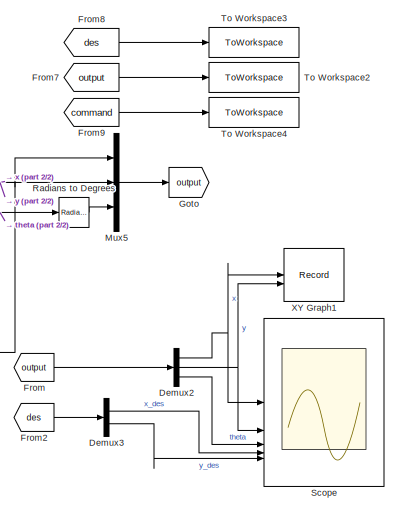
[diagram: root canvas - part 1/2, right side, full height]
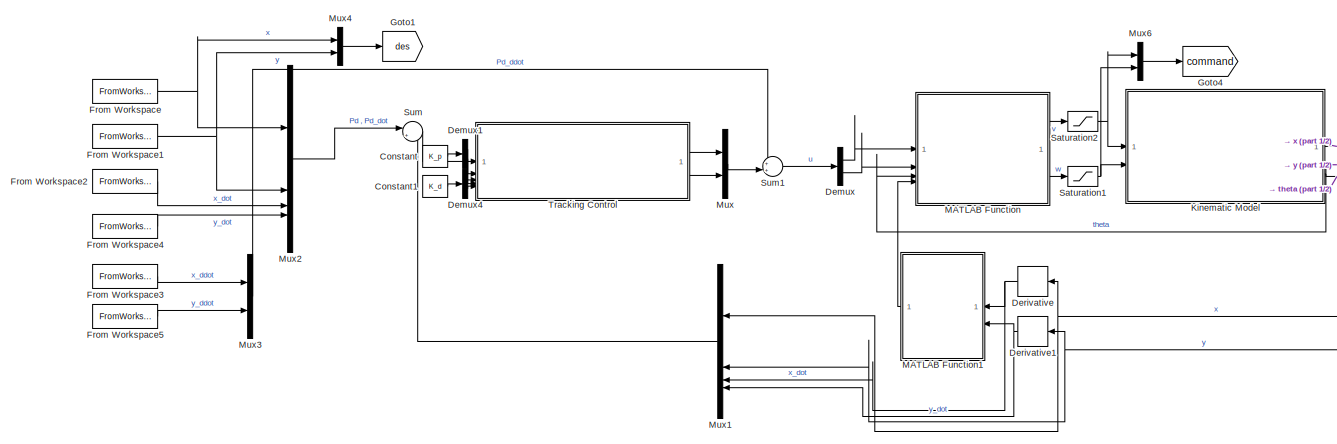
[diagram: root canvas - part 2/2, most of the canvas]
MODEL slx_bae11cb92dfe
KIND model
CONFIG AbsTol = auto
CONFIG EnableMultiTasking = off
CONFIG FixedStep = step_size
CONFIG MaxStep = auto
CONFIG MinStep = auto
CONFIG RelTol = 1e-3
CONFIG SampleTimeConstraint = Unconstrained
CONFIG SolverName = FixedStepAuto
CONFIG StartTime = 0.0
CONFIG StopTime = 10.0
BLOCK [Constant] Constant
  Value = K_p
BLOCK [Constant] Constant1
  Value = K_d
BLOCK [Demux] Demux
  Outputs = 2
BLOCK [Demux] Demux1
  Outputs = 2
BLOCK [Demux] Demux2
  Outputs = 3
BLOCK [Demux] Demux3
  Outputs = 2
BLOCK [Demux] Demux4
  Outputs = 2
BLOCK [Derivative] Derivative
  NameLocation = top
BLOCK [Derivative] Derivative1
  NameLocation = top
BLOCK [From] From
  GotoTag = output
BLOCK [FromWorkspace] From Workspace
  VariableName = x_sim
BLOCK [FromWorkspace] From Workspace1
  VariableName = y_sim
BLOCK [FromWorkspace] From Workspace2
  VariableName = x_dot_sim
BLOCK [FromWorkspace] From Workspace3
  VariableName = x_dot_dot_sim
BLOCK [FromWorkspace] From Workspace4
  VariableName = y_dot_sim
BLOCK [FromWorkspace] From Workspace5
  VariableName = y_dot_dot_sim
BLOCK [From] From2
  GotoTag = des
BLOCK [From] From7
  GotoTag = output
BLOCK [From] From8
  GotoTag = des
BLOCK [From] From9
  GotoTag = command
BLOCK [Goto] Goto
  GotoTag = output
BLOCK [Goto] Goto1
  GotoTag = des
BLOCK [Goto] Goto4
  GotoTag = command
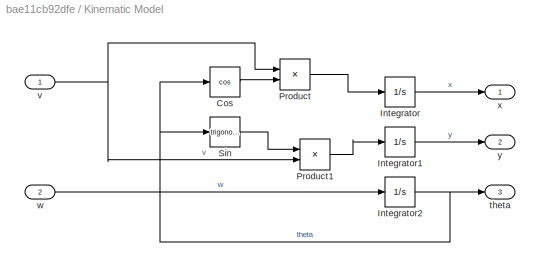
BLOCK [SubSystem] Kinematic Model
BLOCK [Trigonometry] Kinematic Model/Cos
  Operator = cos
BLOCK [Integrator] Kinematic Model/Integrator
  InitialCondition = x_i
BLOCK [Integrator] Kinematic Model/Integrator1
  InitialCondition = y_i
BLOCK [Integrator] Kinematic Model/Integrator2
  InitialCondition = theta_i
BLOCK [Product] Kinematic Model/Product
BLOCK [Product] Kinematic Model/Product1
BLOCK [Trigonometry] Kinematic Model/Sin
BLOCK [Outport] Kinematic Model/theta
  Port = 3
BLOCK [Inport] Kinematic Model/v
BLOCK [Inport] Kinematic Model/w
  Port = 2
BLOCK [Outport] Kinematic Model/x
BLOCK [Outport] Kinematic Model/y
  Port = 2
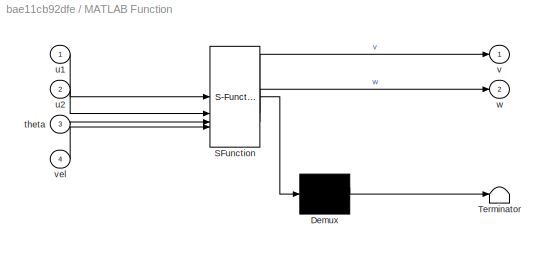
BLOCK [SubSystem] MATLAB Function
  ErrorFcn = Stateflow.Translate.translate
  PermitHierarchicalResolution = ExplicitOnly
  SFBlockType = MATLAB Function
  TreatAsAtomicUnit = on
BLOCK [Demux] MATLAB Function/ Demux 
  Outputs = 1
BLOCK [S-Function] MATLAB Function/ SFunction 
  EnableBusSupport = on
  FunctionName = sf_sfun
  PortCounts = [4 3]
  SFcnIsStateOwnerBlock = off
  SFunctionDeploymentMode = off
  Tag = Stateflow S-Function 1
BLOCK [Terminator] MATLAB Function/ Terminator 
BLOCK [Inport] MATLAB Function/theta
  Port = 3
BLOCK [Inport] MATLAB Function/u1
BLOCK [Inport] MATLAB Function/u2
  Port = 2
BLOCK [Outport] MATLAB Function/v
BLOCK [Inport] MATLAB Function/vel
  Port = 4
BLOCK [Outport] MATLAB Function/w
  Port = 2
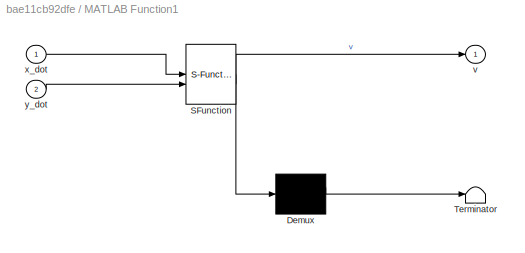
BLOCK [SubSystem] MATLAB Function1
  ErrorFcn = Stateflow.Translate.translate
  NameLocation = top
  PermitHierarchicalResolution = ExplicitOnly
  SFBlockType = MATLAB Function
  TreatAsAtomicUnit = on
BLOCK [Demux] MATLAB Function1/ Demux 
  Outputs = 1
BLOCK [S-Function] MATLAB Function1/ SFunction 
  EnableBusSupport = on
  FunctionName = sf_sfun
  PortCounts = [2 2]
  SFcnIsStateOwnerBlock = off
  SFunctionDeploymentMode = off
  Tag = Stateflow S-Function 3
BLOCK [Terminator] MATLAB Function1/ Terminator 
BLOCK [Outport] MATLAB Function1/v
BLOCK [Inport] MATLAB Function1/x_dot
BLOCK [Inport] MATLAB Function1/y_dot
  Port = 2
BLOCK [Mux] Mux
  DisplayOption = bar
  Inputs = 2
BLOCK [Mux] Mux1
  DisplayOption = bar
  NameLocation = top
BLOCK [Mux] Mux2
  DisplayOption = bar
BLOCK [Mux] Mux3
  DisplayOption = bar
  Inputs = 2
BLOCK [Mux] Mux4
  DisplayOption = bar
  Inputs = 2
BLOCK [Mux] Mux5
  DisplayOption = bar
  Inputs = 3
BLOCK [Mux] Mux6
  DisplayOption = bar
  Inputs = 2
BLOCK [Reference] Radians to Degrees  REF=simulink_extras/Transformations/Radians
to Degrees
  SourceBlock = simulink_extras/Transformations/Radians\nto Degrees
  SourceType = RadiansToDegrees
BLOCK [Saturate] Saturation1
  LowerLimit = -2
  UpperLimit = 2
BLOCK [Saturate] Saturation2
  LowerLimit = -2
  UpperLimit = 2
BLOCK [Scope] Scope
  Floating = off
  NumInputPorts = 5
  ScopeSpecificationString = Simulink.scopes.TimeScopeBlockCfg('CurrentConfiguration', extmgr.ConfigurationSet(extmgr.Configuration('Core','General UI',true),extmgr.Configuration('Core','Source UI',true),extmgr.Configuration('Sources','WiredSimulink',true),extmgr.Configuration('Visuals','Time Domain',true,'SerializedDisplays',{struct('MinYLimReal','-3.3286','MaxYLimReal','6.35392','YLabelReal','','MinYLimMag','0.00000','MaxYL...<+4733ch>
BLOCK [Sum] Sum
  Inputs = |+-
BLOCK [Sum] Sum1
  Inputs = ++|
BLOCK [ToWorkspace] To Workspace2
  FixptAsFi = on
  MaxDataPoints = inf
  SampleTime = -1
  SaveFormat = Structure With Time
  VariableName = output
BLOCK [ToWorkspace] To Workspace3
  FixptAsFi = on
  MaxDataPoints = inf
  SampleTime = -1
  SaveFormat = Structure With Time
  VariableName = reference
BLOCK [ToWorkspace] To Workspace4
  FixptAsFi = on
  MaxDataPoints = inf
  SampleTime = -1
  SaveFormat = Structure With Time
  VariableName = command
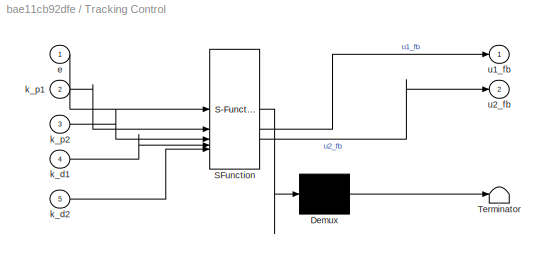
BLOCK [SubSystem] Tracking Control
  ErrorFcn = Stateflow.Translate.translate
  PermitHierarchicalResolution = ExplicitOnly
  SFBlockType = MATLAB Function
  TreatAsAtomicUnit = on
BLOCK [Demux] Tracking Control/ Demux 
  Outputs = 1
BLOCK [S-Function] Tracking Control/ SFunction 
  EnableBusSupport = on
  FunctionName = sf_sfun
  PortCounts = [5 3]
  SFcnIsStateOwnerBlock = off
  SFunctionDeploymentMode = off
  Tag = Stateflow S-Function 2
BLOCK [Terminator] Tracking Control/ Terminator 
BLOCK [Inport] Tracking Control/e
BLOCK [Inport] Tracking Control/k_d1
  Port = 4
BLOCK [Inport] Tracking Control/k_d2
  Port = 5
BLOCK [Inport] Tracking Control/k_p1
  Port = 2
BLOCK [Inport] Tracking Control/k_p2
  Port = 3
BLOCK [Outport] Tracking Control/u1_fb
BLOCK [Outport] Tracking Control/u2_fb
  Port = 2
BLOCK [Record] XY Graph1
  CompatibilityTag = XY
  FileSettingsInternal = {"entries":[{"content":{"excelSettings":{"content":{},"type":"Streamout.ExcelSettings"}},"type":"Streamout.FileSettingStorage","uuid":"a8dc78ea-e018-43ee-9ce6-9f039c81d0b7"}],"packageUris":["http://schema.mathworks.com/mf0/streamout_blocks/R2020a"],"version":"1.0"}
  Layout = [1 1]
  SignalsInternal = {"entries":[{"content":{"signals":[{"content":{"blockPath":["Z_Feedback_MATLAB/XY Graph1"],"channel":[],"dimensions":[1],"domain":"Z_Feedback_MATLAB/XY Graph1","lineColor":"#a2142f","plots":[1],"port":1,"sid":[""],"signalID":915,"signalName":"x"},"type":"RecordBlkView.Signal","uuid":"f428528e-22f6-48e8-82b2-ec440df36d04"},{"content":{"blockPath":["Z_Feedback_MATLAB/XY Graph1"],"channel":[],"dimens...<+389ch>
  VisualizationBindings = {"xyplotplugin":{"info":[{"series":[{"bindingParametersList":[{"parameter":"X-Axis","signalID":915,"signalName":"x"},{"parameter":"Y-Axis","signalID":919,"signalName":"y"}],"seriesID":40585}],"subplotID":1}]}}
LINE Constant1:1 -> Demux4:1
LINE Constant:1 -> Demux1:1
LINE Demux1:1 -> Tracking Control:2
LINE Demux1:2 -> Tracking Control:3
NET Demux2:1 -> Scope:1, XY Graph1:1
NET Demux2:2 -> Scope:2, XY Graph1:2
LINE Demux2:3 -> Scope:3
LINE Demux3:1 -> Scope:4
LINE Demux3:2 -> Scope:5
LINE Demux4:1 -> Tracking Control:4
LINE Demux4:2 -> Tracking Control:5
LINE Demux:1 -> MATLAB Function:1
LINE Demux:2 -> MATLAB Function:2
NET Derivative1:1 -> MATLAB Function1:2, Mux1:4
NET Derivative:1 -> MATLAB Function1:1, Mux1:3
NET From Workspace1:1 -> Mux2:2, Mux4:2
LINE From Workspace2:1 -> Mux2:3
LINE From Workspace3:1 -> Mux3:1
LINE From Workspace4:1 -> Mux2:4
LINE From Workspace5:1 -> Mux3:2
NET From Workspace:1 -> Mux2:1, Mux4:1
LINE From2:1 -> Demux3:1
LINE From7:1 -> To Workspace2:1
LINE From8:1 -> To Workspace3:1
LINE From9:1 -> To Workspace4:1
LINE From:1 -> Demux2:1
LINE Kinematic Model/Cos:1 -> Kinematic Model/Product:2
LINE Kinematic Model/Integrator1:1 -> Kinematic Model/y:1
NET Kinematic Model/Integrator2:1 -> Kinematic Model/Cos:1, Kinematic Model/Sin:1, Kinematic Model/theta:1
LINE Kinematic Model/Integrator:1 -> Kinematic Model/x:1
LINE Kinematic Model/Product1:1 -> Kinematic Model/Integrator1:1
LINE Kinematic Model/Product:1 -> Kinematic Model/Integrator:1
LINE Kinematic Model/Sin:1 -> Kinematic Model/Product1:1
NET Kinematic Model/v:1 -> Kinematic Model/Product1:2, Kinematic Model/Product:1
LINE Kinematic Model/w:1 -> Kinematic Model/Integrator2:1
NET Kinematic Model:1 -> Derivative:1, Mux1:1, Mux5:1
NET Kinematic Model:2 -> Derivative1:1, Mux1:2, Mux5:2
NET Kinematic Model:3 -> MATLAB Function:3, Radians to Degrees:1
LINE MATLAB Function1:1 -> MATLAB Function:4
LINE MATLAB Function:1 -> Saturation2:1
LINE MATLAB Function:2 -> Saturation1:1
LINE Mux1:1 -> Sum:2
LINE Mux2:1 -> Sum:1
LINE Mux3:1 -> Sum1:1
LINE Mux4:1 -> Goto1:1
LINE Mux5:1 -> Goto:1
LINE Mux6:1 -> Goto4:1
LINE Mux:1 -> Sum1:2
LINE Radians to Degrees:1 -> Mux5:3
NET Saturation1:1 -> Kinematic Model:2, Mux6:2
NET Saturation2:1 -> Kinematic Model:1, Mux6:1
LINE Sum1:1 -> Demux:1
LINE Sum:1 -> Tracking Control:1
LINE Tracking Control:1 -> Mux:1
LINE Tracking Control:2 -> Mux:2
note: NET lines group one-source signal fan-out (src -> all destinations, sorted); 1:1 wires keep LINE
CHART MATLAB Function states=1 transitions=1
  STATE_LABEL 'eML_blk_kernel()'
  STATE_LABEL 'SCRIPT:\nfunction [v,w] = T_inv(u1,u2,theta,vel)\n\n\nif abs(vel) < 1e-3\n    if abs(vel) >= 0\n        vel = 1e-3;\n    else \n        vel = -1e-3;\n    end\nend\n\nT_i = [cos(theta) sin(theta);\n      -sin(theta)/vel cos(theta)/vel];\n\nv_w = T_i * [u1;u2];\n\nv = v_w(1);\nw = v_w(2);\n\n\n'
CHART Tracking Control states=1 transitions=1
  STATE_LABEL 'eML_blk_kernel()'
  STATE_LABEL 'SCRIPT:\nfunction [u1_fb,u2_fb] = tracking_controller(e, k_p1, k_p2, k_d1, k_d2)\n\n    e_x = e(1);\n    e_y = e(2);\n    e_xdot = e(3);\n    e_ydot = e(4);\n    \n    % Controller\n    u1_fb = k_p1 * e_x + k_d1 * e_xdot;\n    u2_fb = k_p2 *e_y + k_d2 * e_ydot;\n\nend'
CHART MATLAB Function1 states=1 transitions=1
  STATE_LABEL 'eML_blk_kernel()'
  STATE_LABEL 'SCRIPT:\nfunction v = vel(x_dot,y_dot)\n\nv = sqrt(x_dot^2 + y_dot^2);\n'
CHART  states=0 transitions=0
CHART  states=0 transitions=0
CHART  states=0 transitions=0
